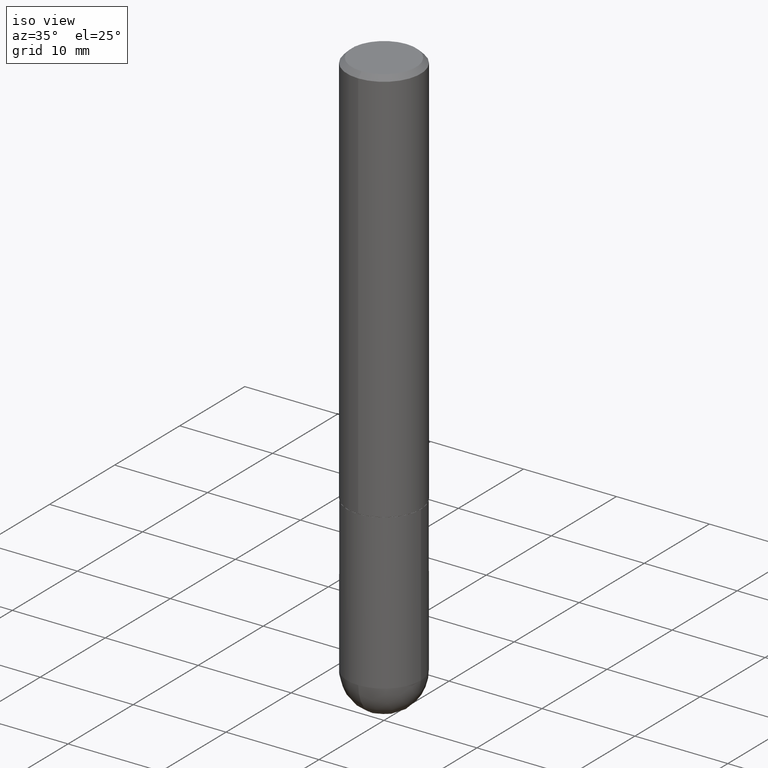
[diagram: clean part render]
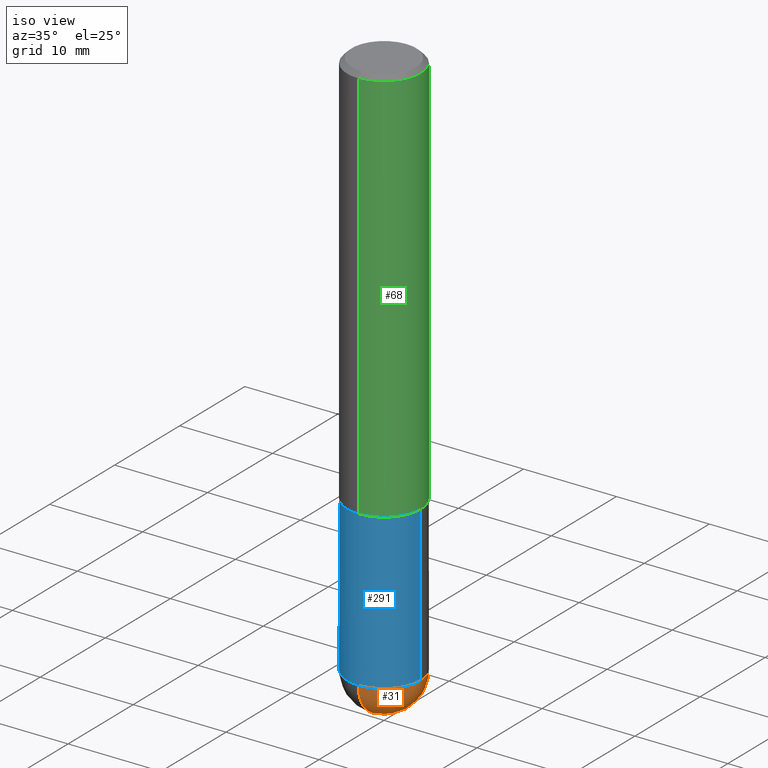
[diagram: same view with three faces highlighted in distinct colors, each labeled with its STEP entity id]
A machine part, iso view with three faces highlighted in distinct colors.
Their STEP definitions:

[orange] entity #31 — the highlighted spherical surface has radius 3.9688 mm.
#7 = CARTESIAN_POINT ( 'NONE',  ( 5.400447736582527652E-29, -8.657341756053672891E-15, -2.343750000000000000 ) ) ;
#11 = DIRECTION ( 'NONE',  ( 6.982962677686265922E-15, 1.000000000000000000, -3.496765431890251398E-15 ) ) ;
#19 = FACE_OUTER_BOUND ( 'NONE', #270, .T. ) ;
#31 = ADVANCED_FACE ( 'NONE', ( #19 ), #373, .T. ) ;
#43 = CIRCLE ( 'NONE', #350, 0.1562500000000000000 ) ;
#48 = CIRCLE ( 'NONE', #328, 0.1562500000000002498 ) ;
#61 = DIRECTION ( 'NONE',  ( 1.000000000000000000, -6.982962677686262766E-15, 0.000000000000000000 ) ) ;
#88 = AXIS2_PLACEMENT_3D ( 'NONE', #7, #382, #405 ) ;
#96 = CARTESIAN_POINT ( 'NONE',  ( 0.1562500000000000000, -8.129477862328905246E-15, -2.343750000000000000 ) ) ;
#113 = CARTESIAN_POINT ( 'NONE',  ( 5.731567514496413899E-29, -8.183159387913622595E-15, -2.343750000000000000 ) ) ;
#114 = CIRCLE ( 'NONE', #138, 0.1562500000000000000 ) ;
#130 = DIRECTION ( 'NONE',  ( 1.000000000000000000, -6.982962677686265922E-15, 4.883557194083112340E-29 ) ) ;
#135 = EDGE_CURVE ( 'NONE', #336, #316, #114, .T. ) ;
#138 = AXIS2_PLACEMENT_3D ( 'NONE', #113, #259, #351 ) ;
#158 = CARTESIAN_POINT ( 'NONE',  ( -1.110223024625101517E-15, -0.1562500000000085487, -2.343749999999999556 ) ) ;
#169 = EDGE_CURVE ( 'NONE', #274, #336, #43, .T. ) ;
#187 = CARTESIAN_POINT ( 'NONE',  ( 5.400447736582527652E-29, -8.657341756053672891E-15, -2.343750000000000000 ) ) ;
#188 = EDGE_CURVE ( 'NONE', #244, #274, #339, .T. ) ;
#205 = ORIENTED_EDGE ( 'NONE', *, *, #169, .F. ) ;
#211 = CARTESIAN_POINT ( 'NONE',  ( 5.400447736582527652E-29, -8.657341756053672891E-15, -2.343750000000000000 ) ) ;
#213 = DIRECTION ( 'NONE',  ( -1.000000000000000000, 6.982962677686265922E-15, -4.883557194083112340E-29 ) ) ;
#219 = ORIENTED_EDGE ( 'NONE', *, *, #135, .F. ) ;
#224 = DIRECTION ( 'NONE',  ( 6.982962677686265922E-15, 1.000000000000000000, 0.000000000000000000 ) ) ;
#227 = ORIENTED_EDGE ( 'NONE', *, *, #388, .T. ) ;
#244 = VERTEX_POINT ( 'NONE', #358 ) ;
#259 = DIRECTION ( 'NONE',  ( -2.445468806185136597E-29, 3.491481338843145583E-15, 1.000000000000000000 ) ) ;
#270 = EDGE_LOOP ( 'NONE', ( #325, #227, #219, #205 ) ) ;
#274 = VERTEX_POINT ( 'NONE', #158 ) ;
#281 = CARTESIAN_POINT ( 'NONE',  ( 5.731567514496413899E-29, -8.183159387913622595E-15, -2.343750000000000000 ) ) ;
#287 = CARTESIAN_POINT ( 'NONE',  ( 1.091087918388535577E-15, 0.1562499999999916733, -2.343750000000000444 ) ) ;
#316 = VERTEX_POINT ( 'NONE', #287 ) ;
#325 = ORIENTED_EDGE ( 'NONE', *, *, #188, .F. ) ;
#328 = AXIS2_PLACEMENT_3D ( 'NONE', #187, #130, #224 ) ;
#336 = VERTEX_POINT ( 'NONE', #96 ) ;
#339 = CIRCLE ( 'NONE', #88, 0.1562500000000002498 ) ;
#350 = AXIS2_PLACEMENT_3D ( 'NONE', #281, #379, #61 ) ;
#351 = DIRECTION ( 'NONE',  ( 1.000000000000000000, -6.982962677686262766E-15, 0.000000000000000000 ) ) ;
#355 = AXIS2_PLACEMENT_3D ( 'NONE', #211, #213, #11 ) ;
#358 = CARTESIAN_POINT ( 'NONE',  ( 5.789233224183170584E-29, -9.193318162129576161E-15, -2.500000000000000000 ) ) ;
#373 = SPHERICAL_SURFACE ( 'NONE', #355, 0.1562500000000002498 ) ;
#379 = DIRECTION ( 'NONE',  ( -2.445468806185136597E-29, 3.491481338843145583E-15, 1.000000000000000000 ) ) ;
#382 = DIRECTION ( 'NONE',  ( -1.000000000000000000, 7.105427357601001070E-15, -4.926315508542082329E-29 ) ) ;
#388 = EDGE_CURVE ( 'NONE', #244, #316, #48, .T. ) ;
#405 = DIRECTION ( 'NONE',  ( -7.105427357601000281E-15, -1.000000000000000000, 0.000000000000000000 ) ) ;

[blue] entity #291 — the highlighted cylindrical surface (partial cylindrical patch) has radius 3.9688 mm, axis along (-0, 0, 1).
#43 = CIRCLE ( 'NONE', #350, 0.1562500000000000000 ) ;
#45 = CARTESIAN_POINT ( 'NONE',  ( 0.1562500000000000000, -6.984708418355709513E-15, -1.688000000000000167 ) ) ;
#57 = ORIENTED_EDGE ( 'NONE', *, *, #169, .T. ) ;
#60 = VERTEX_POINT ( 'NONE', #45 ) ;
#61 = DIRECTION ( 'NONE',  ( 1.000000000000000000, -6.982962677686262766E-15, 0.000000000000000000 ) ) ;
#62 = DIRECTION ( 'NONE',  ( 1.000000000000000000, -6.982962677686262766E-15, 0.000000000000000000 ) ) ;
#64 = DIRECTION ( 'NONE',  ( -2.445468806185136877E-29, 3.491481338843145188E-15, 1.000000000000000000 ) ) ;
#66 = DIRECTION ( 'NONE',  ( 1.000000000000000000, -6.982962677686266711E-15, 4.876176775795936353E-29 ) ) ;
#67 = ORIENTED_EDGE ( 'NONE', *, *, #352, .F. ) ;
#94 = CARTESIAN_POINT ( 'NONE',  ( 5.731567514496413899E-29, -8.183159387913622595E-15, -2.343750000000000000 ) ) ;
#96 = CARTESIAN_POINT ( 'NONE',  ( 0.1562500000000000000, -8.129477862328905246E-15, -2.343750000000000000 ) ) ;
#107 = VERTEX_POINT ( 'NONE', #243 ) ;
#128 = CARTESIAN_POINT ( 'NONE',  ( 4.127951344840510809E-29, -5.893620499967230340E-15, -1.688000000000000167 ) ) ;
#129 = LINE ( 'NONE', #345, #395 ) ;
#133 = CARTESIAN_POINT ( 'NONE',  ( 0.000000000000000000, 0.000000000000000000, 0.000000000000000000 ) ) ;
#134 = CARTESIAN_POINT ( 'NONE',  ( 0.1562500000000000000, -1.091087918388479174E-15, 7.619026212181150377E-30 ) ) ;
#147 = AXIS2_PLACEMENT_3D ( 'NONE', #94, #221, #62 ) ;
#149 = CARTESIAN_POINT ( 'NONE',  ( -0.1562500000000000000, -5.928166919315269532E-15, -1.688000000000000167 ) ) ;
#150 = ORIENTED_EDGE ( 'NONE', *, *, #369, .T. ) ;
#158 = CARTESIAN_POINT ( 'NONE',  ( -1.110223024625101517E-15, -0.1562500000000085487, -2.343749999999999556 ) ) ;
#162 = CYLINDRICAL_SURFACE ( 'NONE', #276, 0.1562500000000000000 ) ;
#168 = VECTOR ( 'NONE', #195, 39.37007874015748143 ) ;
#169 = EDGE_CURVE ( 'NONE', #274, #336, #43, .T. ) ;
#177 = VERTEX_POINT ( 'NONE', #149 ) ;
#180 = CIRCLE ( 'NONE', #323, 0.1562500000000000000 ) ;
#195 = DIRECTION ( 'NONE',  ( -2.445468806185136877E-29, 3.491481338843145188E-15, 1.000000000000000000 ) ) ;
#221 = DIRECTION ( 'NONE',  ( -2.445468806185136597E-29, 3.491481338843145583E-15, 1.000000000000000000 ) ) ;
#226 = DIRECTION ( 'NONE',  ( -2.445468806185136597E-29, 3.491481338843145583E-15, 1.000000000000000000 ) ) ;
#231 = CIRCLE ( 'NONE', #147, 0.1562500000000000000 ) ;
#243 = CARTESIAN_POINT ( 'NONE',  ( -0.1562500000000000000, -5.928166919315270321E-15, -2.343750000000000000 ) ) ;
#251 = DIRECTION ( 'NONE',  ( -2.445468806185136597E-29, 3.491481338843145583E-15, 1.000000000000000000 ) ) ;
#257 = EDGE_CURVE ( 'NONE', #336, #60, #396, .T. ) ;
#274 = VERTEX_POINT ( 'NONE', #158 ) ;
#275 = EDGE_CURVE ( 'NONE', #107, #177, #129, .T. ) ;
#276 = AXIS2_PLACEMENT_3D ( 'NONE', #133, #226, #66 ) ;
#281 = CARTESIAN_POINT ( 'NONE',  ( 5.731567514496413899E-29, -8.183159387913622595E-15, -2.343750000000000000 ) ) ;
#291 = ADVANCED_FACE ( 'NONE', ( #307 ), #162, .T. ) ;
#307 = FACE_OUTER_BOUND ( 'NONE', #397, .T. ) ;
#310 = ORIENTED_EDGE ( 'NONE', *, *, #275, .F. ) ;
#323 = AXIS2_PLACEMENT_3D ( 'NONE', #128, #251, #377 ) ;
#336 = VERTEX_POINT ( 'NONE', #96 ) ;
#345 = CARTESIAN_POINT ( 'NONE',  ( -0.1562500000000000000, 1.110223024625156540E-15, -7.685836078523291160E-30 ) ) ;
#350 = AXIS2_PLACEMENT_3D ( 'NONE', #281, #379, #61 ) ;
#352 = EDGE_CURVE ( 'NONE', #177, #60, #180, .T. ) ;
#369 = EDGE_CURVE ( 'NONE', #107, #274, #231, .T. ) ;
#377 = DIRECTION ( 'NONE',  ( 1.000000000000000000, -6.982962677686269077E-15, 0.000000000000000000 ) ) ;
#379 = DIRECTION ( 'NONE',  ( -2.445468806185136597E-29, 3.491481338843145583E-15, 1.000000000000000000 ) ) ;
#385 = ORIENTED_EDGE ( 'NONE', *, *, #257, .T. ) ;
#395 = VECTOR ( 'NONE', #64, 39.37007874015748143 ) ;
#396 = LINE ( 'NONE', #134, #168 ) ;
#397 = EDGE_LOOP ( 'NONE', ( #310, #150, #57, #385, #67 ) ) ;

[green] entity #68 — the highlighted cylindrical surface (partial cylindrical patch) has radius 3.9688 mm, axis along (-0, 0, 1).
#2 = CARTESIAN_POINT ( 'NONE',  ( 1.110223024625157132E-15, 0.1562500000000001110, -5.454067469963343169E-16 ) ) ;
#23 = CARTESIAN_POINT ( 'NONE',  ( 4.892164041371128702E-31, -6.981206361553086139E-17, -0.02000000000000003511 ) ) ;
#24 = VERTEX_POINT ( 'NONE', #115 ) ;
#25 = DIRECTION ( 'NONE',  ( -2.446082020685560042E-29, 3.490603180776537498E-15, 1.000000000000000000 ) ) ;
#36 = CIRCLE ( 'NONE', #286, 0.1562500000000000000 ) ;
#68 = ADVANCED_FACE ( 'NONE', ( #234 ), #165, .T. ) ;
#80 = DIRECTION ( 'NONE',  ( -2.446082020685560042E-29, 3.490603180776537498E-15, 1.000000000000000000 ) ) ;
#95 = CARTESIAN_POINT ( 'NONE',  ( 1.110223024625178431E-15, 0.1562499999999943379, -1.687000000000000499 ) ) ;
#111 = VECTOR ( 'NONE', #25, 39.37007874015748143 ) ;
#112 = EDGE_CURVE ( 'NONE', #24, #303, #36, .T. ) ;
#115 = CARTESIAN_POINT ( 'NONE',  ( -1.071952812151801215E-15, -0.1562500000000000833, -0.01999999999999948694 ) ) ;
#122 = ORIENTED_EDGE ( 'NONE', *, *, #294, .T. ) ;
#124 = EDGE_CURVE ( 'NONE', #330, #24, #268, .T. ) ;
#131 = ORIENTED_EDGE ( 'NONE', *, *, #112, .F. ) ;
#159 = VERTEX_POINT ( 'NONE', #95 ) ;
#165 = CYLINDRICAL_SURFACE ( 'NONE', #349, 0.1562500000000001110 ) ;
#202 = CARTESIAN_POINT ( 'NONE',  ( -1.091087918388479765E-15, -0.1562500000000001110, 5.454067469963343169E-16 ) ) ;
#214 = EDGE_CURVE ( 'NONE', #330, #159, #407, .T. ) ;
#220 = DIRECTION ( 'NONE',  ( -6.982962677686265922E-15, -1.000000000000000000, 3.496765431890251792E-15 ) ) ;
#223 = CARTESIAN_POINT ( 'NONE',  ( 4.126540368896540526E-29, -5.888647565970019255E-15, -1.687000000000000055 ) ) ;
#228 = CARTESIAN_POINT ( 'NONE',  ( -1.091087918388439336E-15, -0.1562500000000060785, -1.686999999999999611 ) ) ;
#234 = FACE_OUTER_BOUND ( 'NONE', #376, .T. ) ;
#252 = CARTESIAN_POINT ( 'NONE',  ( 1.091087918388479568E-15, 0.1562499999999999445, -0.02000000000000057981 ) ) ;
#256 = DIRECTION ( 'NONE',  ( -2.446082020685560042E-29, 3.490603180776537498E-15, 1.000000000000000000 ) ) ;
#268 = LINE ( 'NONE', #202, #111 ) ;
#279 = VECTOR ( 'NONE', #256, 39.37007874015748143 ) ;
#286 = AXIS2_PLACEMENT_3D ( 'NONE', #23, #367, #332 ) ;
#294 = EDGE_CURVE ( 'NONE', #159, #303, #343, .T. ) ;
#303 = VERTEX_POINT ( 'NONE', #252 ) ;
#327 = ORIENTED_EDGE ( 'NONE', *, *, #124, .F. ) ;
#330 = VERTEX_POINT ( 'NONE', #228 ) ;
#332 = DIRECTION ( 'NONE',  ( -6.982962677686265133E-15, -1.000000000000000000, 3.496765431890256920E-15 ) ) ;
#343 = LINE ( 'NONE', #2, #279 ) ;
#349 = AXIS2_PLACEMENT_3D ( 'NONE', #392, #80, #394 ) ;
#367 = DIRECTION ( 'NONE',  ( -2.446082020685560042E-29, 3.490603180776537498E-15, 1.000000000000000000 ) ) ;
#374 = AXIS2_PLACEMENT_3D ( 'NONE', #223, #411, #220 ) ;
#376 = EDGE_LOOP ( 'NONE', ( #400, #122, #131, #327 ) ) ;
#392 = CARTESIAN_POINT ( 'NONE',  ( 0.000000000000000000, 0.000000000000000000, 0.000000000000000000 ) ) ;
#394 = DIRECTION ( 'NONE',  ( -6.982962677686265922E-15, -1.000000000000000000, 3.490603180776537104E-15 ) ) ;
#400 = ORIENTED_EDGE ( 'NONE', *, *, #214, .T. ) ;
#407 = CIRCLE ( 'NONE', #374, 0.1562500000000002220 ) ;
#411 = DIRECTION ( 'NONE',  ( -2.446082020685560042E-29, 3.490603180776537498E-15, 1.000000000000000000 ) ) ;